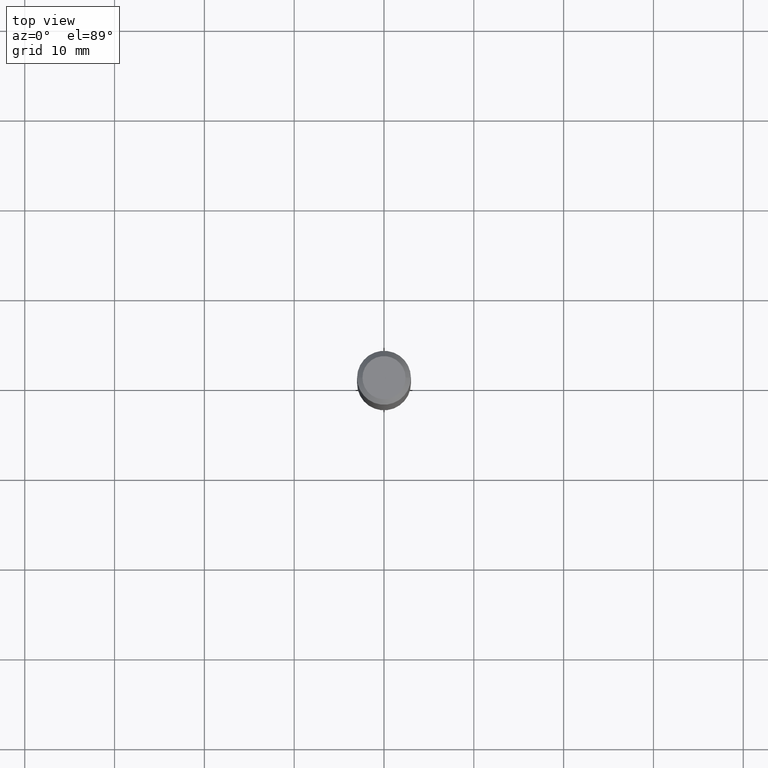
[diagram: clean part render]
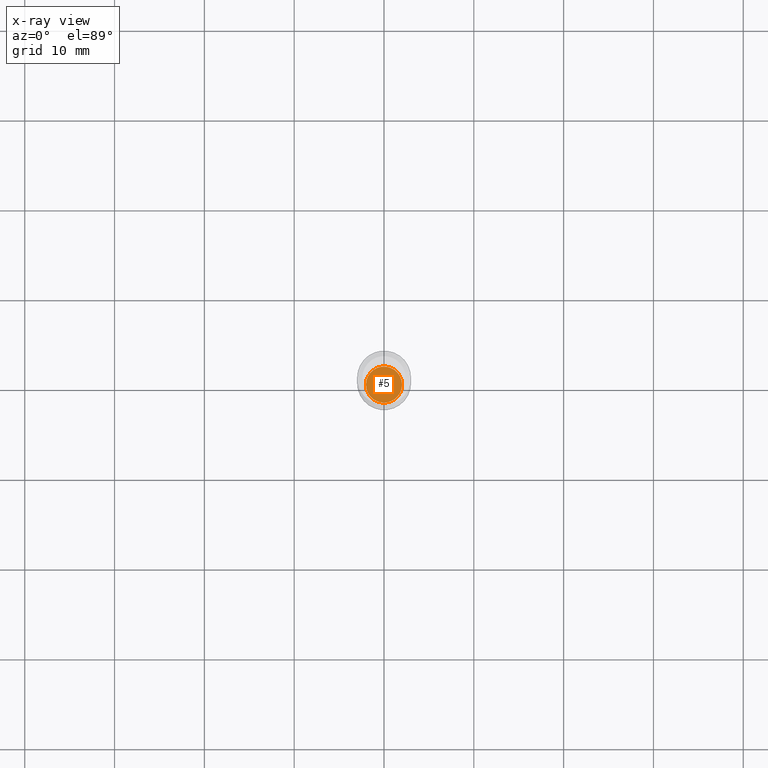
[diagram: x-ray — body ghosted, one internal face saturated and labeled with its STEP entity id]
A machine part, top view, then the same camera in x-ray: the body is ghosted and one INTERNAL B-rep face — a face not visible from any outside direction — is saturated and labeled: STEP entity #5.
In plain terms, the highlighted planar face has unit normal (-0, 0, 1).
Its self-contained STEP definition (entity closure, byte-faithful):
#5 = ADVANCED_FACE ( 'NONE', ( #482 ), #175, .F. ) ;
#32 = ORIENTED_EDGE ( 'NONE', *, *, #337, .F. ) ;
#45 = CARTESIAN_POINT ( 'NONE',  ( 4.332637083918206987E-29, -6.185857488028401870E-15, -1.771700000000000497 ) ) ;
#54 = CARTESIAN_POINT ( 'NONE',  ( 4.332637083918206987E-29, -6.185857488028401870E-15, -1.771700000000000497 ) ) ;
#116 = VERTEX_POINT ( 'NONE', #318 ) ;
#142 = CIRCLE ( 'NONE', #373, 0.07900000000000000078 ) ;
#152 = ORIENTED_EDGE ( 'NONE', *, *, #198, .F. ) ;
#167 = DIRECTION ( 'NONE',  ( 1.000000000000000000, -6.982962677686271444E-15, 0.000000000000000000 ) ) ;
#175 = PLANE ( 'NONE',  #189 ) ;
#189 = AXIS2_PLACEMENT_3D ( 'NONE', #54, #393, #218 ) ;
#198 = EDGE_CURVE ( 'NONE', #225, #116, #262, .T. ) ;
#218 = DIRECTION ( 'NONE',  ( 1.000000000000000000, -6.982962677686265922E-15, 4.876176775795935793E-29 ) ) ;
#225 = VERTEX_POINT ( 'NONE', #470 ) ;
#262 = CIRCLE ( 'NONE', #320, 0.07900000000000000078 ) ;
#271 = EDGE_LOOP ( 'NONE', ( #152, #32 ) ) ;
#272 = DIRECTION ( 'NONE',  ( 1.000000000000000000, -6.982962677686271444E-15, 0.000000000000000000 ) ) ;
#309 = CARTESIAN_POINT ( 'NONE',  ( 4.332637083918206987E-29, -6.185857488028401870E-15, -1.771700000000000497 ) ) ;
#318 = CARTESIAN_POINT ( 'NONE',  ( -0.07900000000000000078, -5.621879499603811813E-15, -1.771700000000000497 ) ) ;
#320 = AXIS2_PLACEMENT_3D ( 'NONE', #309, #458, #167 ) ;
#337 = EDGE_CURVE ( 'NONE', #116, #225, #142, .T. ) ;
#351 = DIRECTION ( 'NONE',  ( -2.445468806185136597E-29, 3.491481338843145583E-15, 1.000000000000000000 ) ) ;
#373 = AXIS2_PLACEMENT_3D ( 'NONE', #45, #351, #272 ) ;
#393 = DIRECTION ( 'NONE',  ( -2.438088387897960049E-29, 3.491481338843145188E-15, 1.000000000000000000 ) ) ;
#458 = DIRECTION ( 'NONE',  ( -2.445468806185136597E-29, 3.491481338843145583E-15, 1.000000000000000000 ) ) ;
#470 = CARTESIAN_POINT ( 'NONE',  ( 0.07900000000000000078, -6.737511539565617508E-15, -1.771700000000000497 ) ) ;
#482 = FACE_OUTER_BOUND ( 'NONE', #271, .T. ) ;